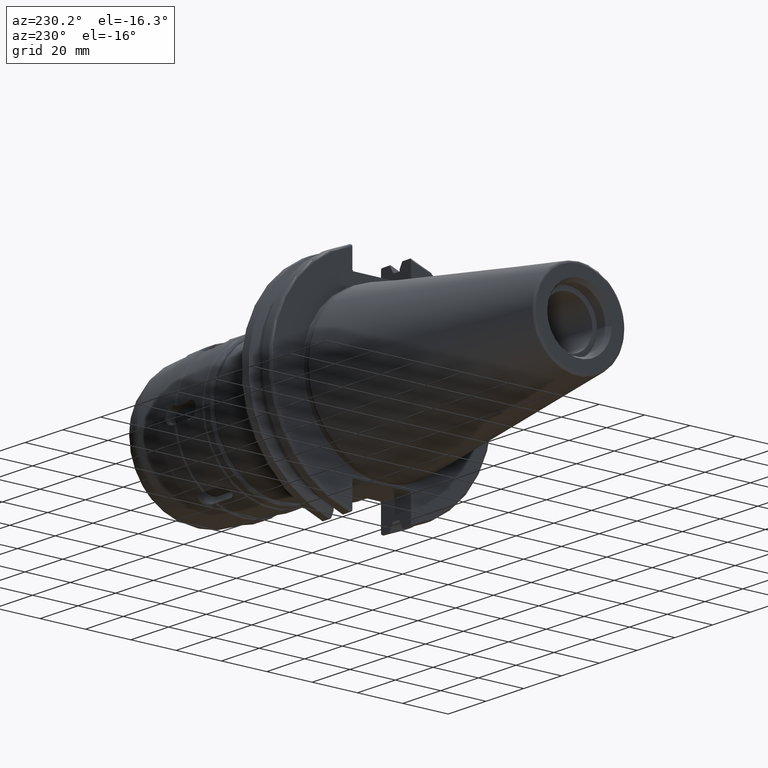
[diagram: clean part render]
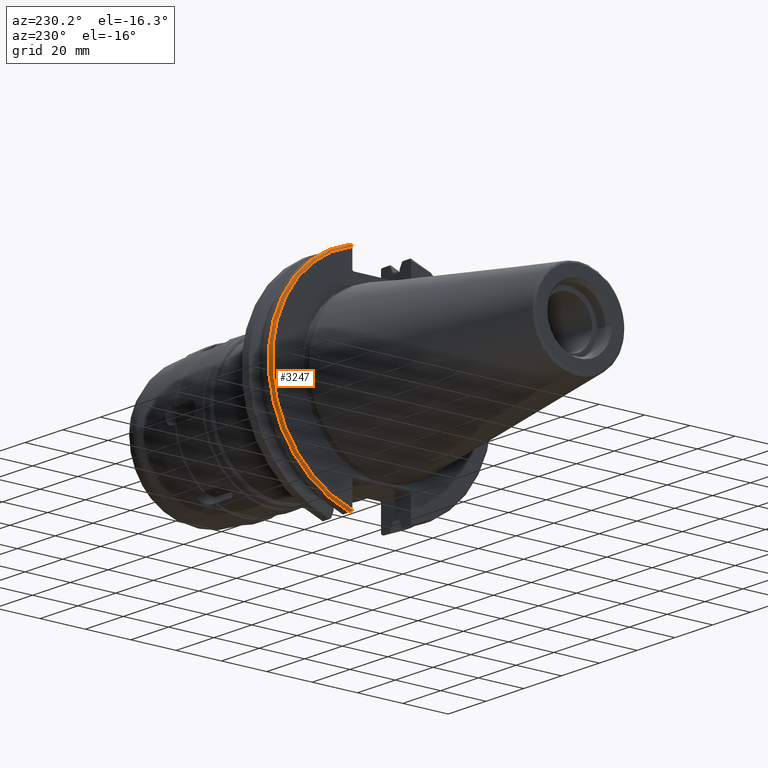
[diagram: same view with one face highlighted and labeled with its STEP entity id]
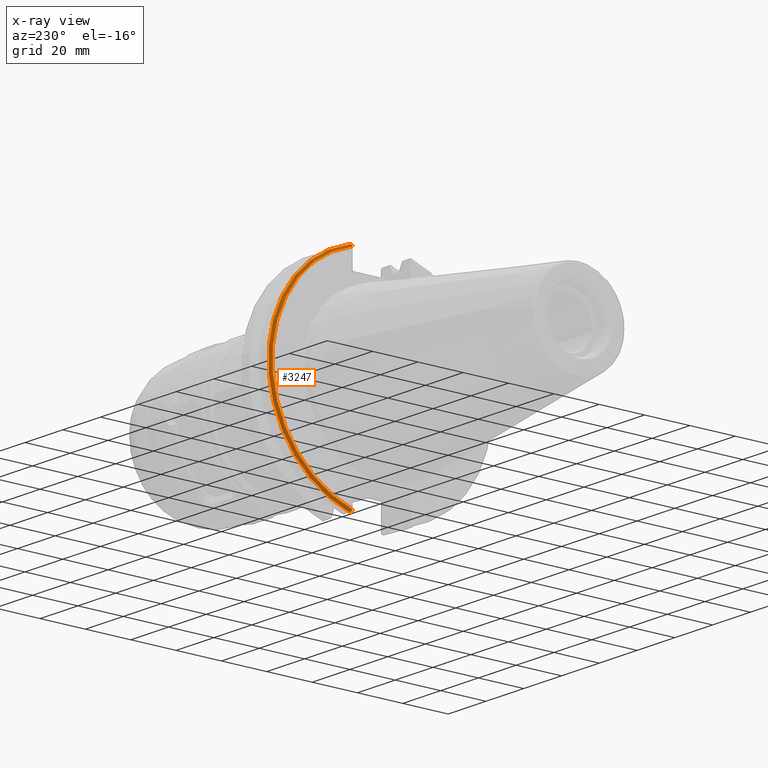
[diagram: x-ray of the same camera — body ghosted, the highlighted face saturated]
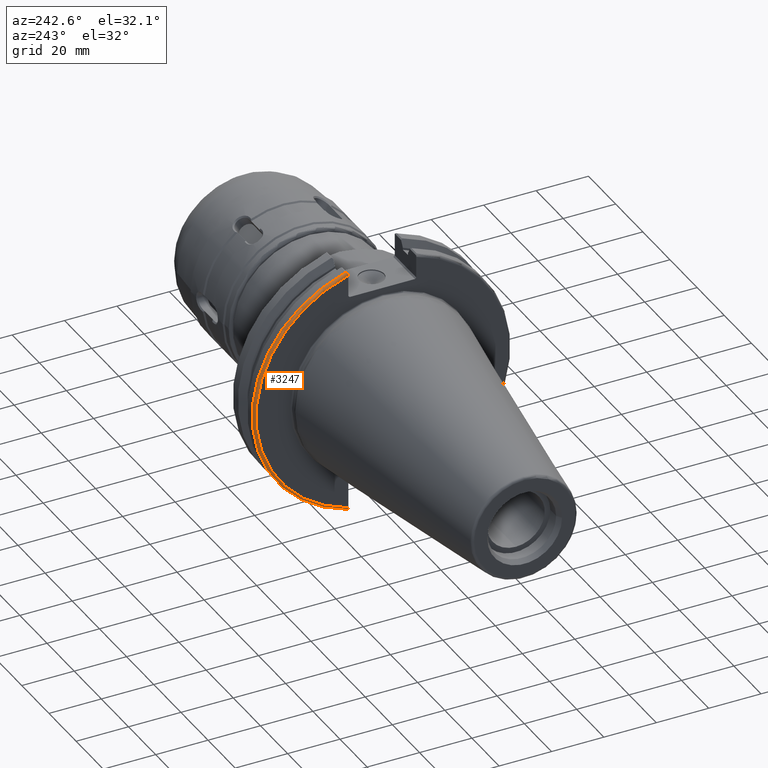
[diagram: same view with one face highlighted and labeled with its STEP entity id]
A machine part, auxiliary view. The second image highlights one B-rep face of the part: STEP entity #3247.
The next image is the same camera in x-ray: the body ghosted, the highlighted face saturated — about 0% of this face is hidden behind the body in this view.
A second angle (auxiliary view) of the same face is appended — the face is thin or edge-on in the first view.
In plain terms, the highlighted toroidal blend (fillet) surface has major radius 48.2125 mm and minor (blend) radius 1 mm.
Its self-contained STEP definition (entity closure, byte-faithful):
#242=B_SPLINE_CURVE_WITH_KNOTS('',3,(#5011,#5012,#5013,#5014,#5015,#5016),
 .UNSPECIFIED.,.F.,.F.,(4,2,4),(0.0976892167532858,0.112000071948292,0.150881870548587),
 .UNSPECIFIED.);
#251=B_SPLINE_CURVE_WITH_KNOTS('',3,(#5176,#5177,#5178,#5179,#5180,#5181,
#5182,#5183),.UNSPECIFIED.,.F.,.F.,(4,2,2,4),(-0.104075769062722,-0.0730268503455479,
-0.0343639873656265,0.),.UNSPECIFIED.);
#252=B_SPLINE_CURVE_WITH_KNOTS('',3,(#5186,#5187,#5188,#5189,#5190,#5191,
#5192,#5193),.UNSPECIFIED.,.F.,.F.,(4,2,2,4),(0.,0.0343639873656266,0.0730268503455482,
0.104075769062722),.UNSPECIFIED.);
#253=B_SPLINE_CURVE_WITH_KNOTS('',3,(#5194,#5195,#5196,#5197,#5198,#5199),
 .UNSPECIFIED.,.F.,.F.,(4,2,4),(0.452859340315923,0.491741138916218,0.506051994111224),
 .UNSPECIFIED.);
#288=TOROIDAL_SURFACE('',#3566,48.2125,1.);
#332=FACE_OUTER_BOUND('',#523,.T.);
#523=EDGE_LOOP('',(#2379,#2380,#2381,#2382,#2383,#2384));
#1156=CIRCLE('',#3545,48.2125);
#1165=CIRCLE('',#3567,49.2125);
#1349=VERTEX_POINT('',#4942);
#1350=VERTEX_POINT('',#4944);
#1366=VERTEX_POINT('',#5010);
#1403=VERTEX_POINT('',#5174);
#1404=VERTEX_POINT('',#5175);
#1405=VERTEX_POINT('',#5184);
#1711=EDGE_CURVE('',#1350,#1349,#1156,.T.);
#1731=EDGE_CURVE('',#1366,#1350,#242,.T.);
#1780=EDGE_CURVE('',#1403,#1404,#251,.T.);
#1781=EDGE_CURVE('',#1404,#1405,#1165,.T.);
#1782=EDGE_CURVE('',#1405,#1366,#252,.T.);
#1783=EDGE_CURVE('',#1349,#1403,#253,.T.);
#2379=ORIENTED_EDGE('',*,*,#1780,.T.);
#2380=ORIENTED_EDGE('',*,*,#1781,.T.);
#2381=ORIENTED_EDGE('',*,*,#1782,.T.);
#2382=ORIENTED_EDGE('',*,*,#1731,.T.);
#2383=ORIENTED_EDGE('',*,*,#1711,.T.);
#2384=ORIENTED_EDGE('',*,*,#1783,.T.);
#3247=ADVANCED_FACE('',(#332),#288,.T.);
#3545=AXIS2_PLACEMENT_3D('',#4945,#4011,#4012);
#3566=AXIS2_PLACEMENT_3D('',#5173,#4091,#4092);
#3567=AXIS2_PLACEMENT_3D('',#5185,#4093,#4094);
#4011=DIRECTION('center_axis',(1.,0.,0.));
#4012=DIRECTION('ref_axis',(0.,1.,-6.12323399573677E-17));
#4091=DIRECTION('center_axis',(1.,0.,0.));
#4092=DIRECTION('ref_axis',(0.,0.,-1.));
#4093=DIRECTION('center_axis',(-1.,0.,0.));
#4094=DIRECTION('ref_axis',(0.,1.,-6.12323399573677E-17));
#4942=CARTESIAN_POINT('',(3.175,12.95,46.4407434937254));
#4944=CARTESIAN_POINT('',(3.175,12.95,-46.4407434937254));
#4945=CARTESIAN_POINT('Origin',(3.175,0.,0.));
#5010=CARTESIAN_POINT('',(3.31949794294344,12.95,-46.9780755322918));
#5011=CARTESIAN_POINT('Ctrl Pts',(3.31949794294344,12.95,-46.9780755322918));
#5012=CARTESIAN_POINT('Ctrl Pts',(3.29341556483839,12.95,-46.9333752207329));
#5013=CARTESIAN_POINT('Ctrl Pts',(3.27115672912336,12.95,-46.887363294568));
#5014=CARTESIAN_POINT('Ctrl Pts',(3.20453530071253,12.95,-46.7230464903732));
#5015=CARTESIAN_POINT('Ctrl Pts',(3.175,12.95,-46.5703494890597));
#5016=CARTESIAN_POINT('Ctrl Pts',(3.175,12.95,-46.4407434937254));
#5173=CARTESIAN_POINT('Origin',(4.175,0.,0.));
#5174=CARTESIAN_POINT('',(3.31949794294344,12.95,46.9780755322918));
#5175=CARTESIAN_POINT('',(4.175,13.4317035994433,47.3440544806494));
#5176=CARTESIAN_POINT('Ctrl Pts',(3.31949794294344,12.95,46.9780755322918));
#5177=CARTESIAN_POINT('Ctrl Pts',(3.36785032278754,13.0300321736484,47.0388807469102));
#5178=CARTESIAN_POINT('Ctrl Pts',(3.43235971798504,13.1083611826073,47.0983919657547));
#5179=CARTESIAN_POINT('Ctrl Pts',(3.58507512107923,13.2478194810695,47.2043467509586));
#5180=CARTESIAN_POINT('Ctrl Pts',(3.70638116490965,13.3242014686233,47.2623787015413));
#5181=CARTESIAN_POINT('Ctrl Pts',(3.92661103245834,13.4067722493645,47.3251126473446));
#5182=CARTESIAN_POINT('Ctrl Pts',(4.06045337544791,13.4317035994433,47.3440544806494));
#5183=CARTESIAN_POINT('Ctrl Pts',(4.175,13.4317035994433,47.3440544806494));
#5184=CARTESIAN_POINT('',(4.175,13.4317035994433,-47.3440544806494));
#5185=CARTESIAN_POINT('Origin',(4.175,0.,0.));
#5186=CARTESIAN_POINT('Ctrl Pts',(4.175,13.4317035994433,-47.3440544806494));
#5187=CARTESIAN_POINT('Ctrl Pts',(4.06045337544791,13.4317035994433,-47.3440544806494));
#5188=CARTESIAN_POINT('Ctrl Pts',(3.92661103245834,13.4067722493645,-47.3251126473446));
#5189=CARTESIAN_POINT('Ctrl Pts',(3.70638116490964,13.3242014686232,-47.2623787015413));
#5190=CARTESIAN_POINT('Ctrl Pts',(3.58507512107923,13.2478194810695,-47.2043467509586));
#5191=CARTESIAN_POINT('Ctrl Pts',(3.43235971798504,13.1083611826073,-47.0983919657547));
#5192=CARTESIAN_POINT('Ctrl Pts',(3.36785032278754,13.0300321736484,-47.0388807469102));
#5193=CARTESIAN_POINT('Ctrl Pts',(3.31949794294344,12.95,-46.9780755322918));
#5194=CARTESIAN_POINT('Ctrl Pts',(3.175,12.95,46.4407434937254));
#5195=CARTESIAN_POINT('Ctrl Pts',(3.175,12.95,46.5703494890597));
#5196=CARTESIAN_POINT('Ctrl Pts',(3.20453530071253,12.95,46.7230464903732));
#5197=CARTESIAN_POINT('Ctrl Pts',(3.27115672912336,12.95,46.887363294568));
#5198=CARTESIAN_POINT('Ctrl Pts',(3.29341556483839,12.95,46.9333752207329));
#5199=CARTESIAN_POINT('Ctrl Pts',(3.31949794294344,12.95,46.9780755322918));